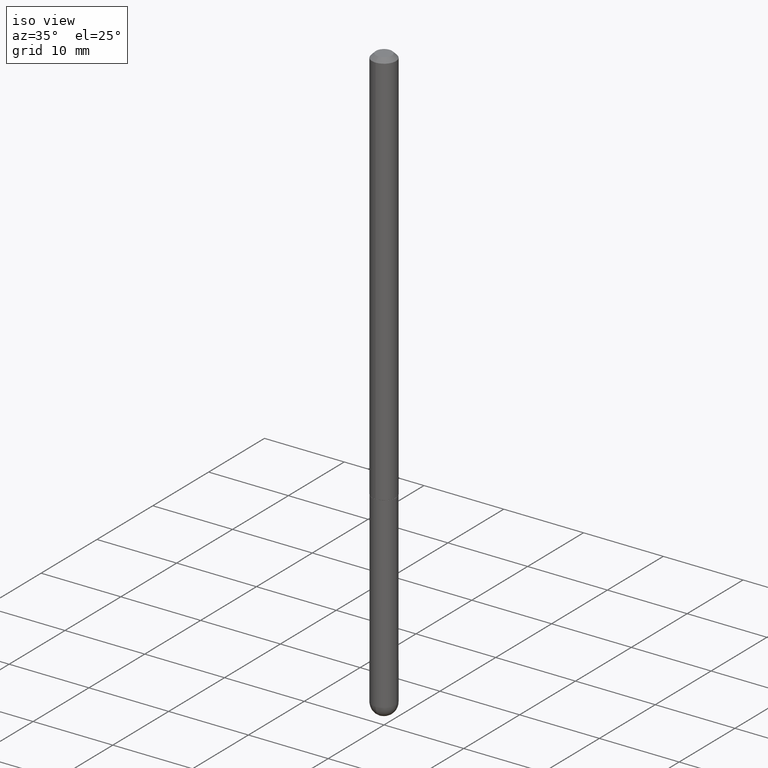
[diagram: clean part render]
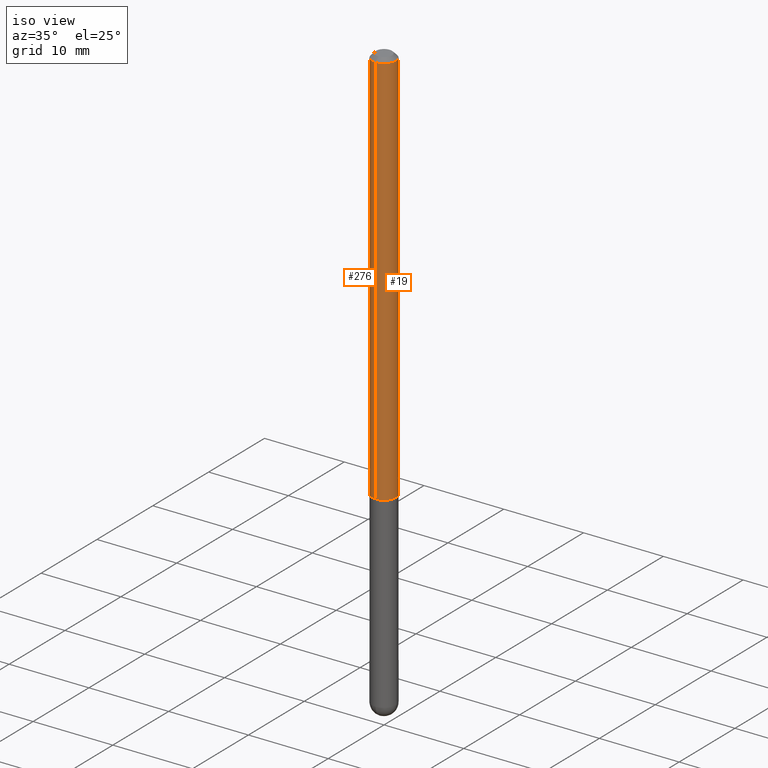
[diagram: same view with one multi-face feature highlighted, each face labeled with its STEP entity id]
A machine part, iso view. The highlighted faces form ONE feature: a constant-radius fillet chain: 2 tangent blend faces with common blend radius 1.4999 mm. The faces share edges in the B-rep.
Their STEP definitions:
[1] entity #276 (Cylinder):
#9 = ORIENTED_EDGE ( 'NONE', *, *, #59, .T. ) ;
#15 = DIRECTION ( 'NONE',  ( -2.452606242276133797E-29, 3.481260124123203654E-15, 1.000000000000000000 ) ) ;
#16 = VERTEX_POINT ( 'NONE', #122 ) ;
#34 = DIRECTION ( 'NONE',  ( -2.452606242276134078E-29, 3.481260124123204048E-15, 1.000000000000000000 ) ) ;
#38 = AXIS2_PLACEMENT_3D ( 'NONE', #259, #99, #134 ) ;
#44 = ORIENTED_EDGE ( 'NONE', *, *, #386, .F. ) ;
#54 = CIRCLE ( 'NONE', #306, 0.05905000000000001914 ) ;
#56 = VERTEX_POINT ( 'NONE', #125 ) ;
#59 = EDGE_CURVE ( 'NONE', #16, #81, #375, .T. ) ;
#70 = CIRCLE ( 'NONE', #363, 0.05905000000000020649 ) ;
#81 = VERTEX_POINT ( 'NONE', #368 ) ;
#85 = DIRECTION ( 'NONE',  ( -6.982962677686265922E-15, -1.000000000000000000, 3.469747663417776213E-15 ) ) ;
#99 = DIRECTION ( 'NONE',  ( -2.452606242276133797E-29, 3.481260124123203654E-15, 1.000000000000000000 ) ) ;
#102 = VECTOR ( 'NONE', #252, 39.37007874015748143 ) ;
#122 = CARTESIAN_POINT ( 'NONE',  ( -4.123439461173271448E-16, -0.05905000000000704824, -1.967499999999999361 ) ) ;
#125 = CARTESIAN_POINT ( 'NONE',  ( 4.123439461173745750E-16, 0.05904999999999994975, -0.02000000000000027450 ) ) ;
#134 = DIRECTION ( 'NONE',  ( -6.982962677686265922E-15, -1.000000000000000000, 3.481260124123203654E-15 ) ) ;
#196 = CYLINDRICAL_SURFACE ( 'NONE', #38, 0.05905000000000010935 ) ;
#204 = DIRECTION ( 'NONE',  ( -2.452606242276133797E-29, 3.481260124123203654E-15, 1.000000000000000000 ) ) ;
#214 = LINE ( 'NONE', #404, #102 ) ;
#228 = DIRECTION ( 'NONE',  ( -6.982962677686265922E-15, -1.000000000000000000, 4.626330217890353559E-15 ) ) ;
#231 = CARTESIAN_POINT ( 'NONE',  ( 4.195754854663646379E-16, 0.05904999999999335780, -1.967500000000000027 ) ) ;
#232 = EDGE_CURVE ( 'NONE', #262, #16, #70, .T. ) ;
#239 = ORIENTED_EDGE ( 'NONE', *, *, #412, .F. ) ;
#252 = DIRECTION ( 'NONE',  ( -2.452606242276134078E-29, 3.481260124123204048E-15, 1.000000000000000000 ) ) ;
#259 = CARTESIAN_POINT ( 'NONE',  ( 0.000000000000000000, 0.000000000000000000, 0.000000000000000000 ) ) ;
#262 = VERTEX_POINT ( 'NONE', #231 ) ;
#264 = FACE_OUTER_BOUND ( 'NONE', #295, .T. ) ;
#276 = ADVANCED_FACE ( 'NONE', ( #264 ), #196, .T. ) ;
#295 = EDGE_LOOP ( 'NONE', ( #239, #374, #9, #44 ) ) ;
#297 = CARTESIAN_POINT ( 'NONE',  ( 4.825502781678292621E-29, -6.849379294212400691E-15, -1.967499999999999805 ) ) ;
#306 = AXIS2_PLACEMENT_3D ( 'NONE', #365, #15, #85 ) ;
#313 = VECTOR ( 'NONE', #34, 39.37007874015748143 ) ;
#363 = AXIS2_PLACEMENT_3D ( 'NONE', #297, #204, #228 ) ;
#365 = CARTESIAN_POINT ( 'NONE',  ( 4.905212484552284025E-31, -6.962520248246431022E-17, -0.02000000000000006981 ) ) ;
#368 = CARTESIAN_POINT ( 'NONE',  ( -4.051124067684085231E-16, -0.05905000000000008159, -0.01999999999999986511 ) ) ;
#374 = ORIENTED_EDGE ( 'NONE', *, *, #232, .T. ) ;
#375 = LINE ( 'NONE', #407, #313 ) ;
#386 = EDGE_CURVE ( 'NONE', #56, #81, #54, .T. ) ;
#404 = CARTESIAN_POINT ( 'NONE',  ( 4.195754854663398874E-16, 0.05905000000000010935, -2.055684103294755676E-16 ) ) ;
#407 = CARTESIAN_POINT ( 'NONE',  ( -4.123439461173747722E-16, -0.05905000000000010935, 2.055684103294755676E-16 ) ) ;
#412 = EDGE_CURVE ( 'NONE', #262, #56, #214, .T. ) ;
[2] entity #19 (Cylinder):
#16 = VERTEX_POINT ( 'NONE', #122 ) ;
#19 = ADVANCED_FACE ( 'NONE', ( #253 ), #377, .T. ) ;
#34 = DIRECTION ( 'NONE',  ( -2.452606242276134078E-29, 3.481260124123204048E-15, 1.000000000000000000 ) ) ;
#50 = ORIENTED_EDGE ( 'NONE', *, *, #341, .T. ) ;
#55 = CARTESIAN_POINT ( 'NONE',  ( 4.905212484552284025E-31, -6.962520248246431022E-17, -0.02000000000000006981 ) ) ;
#56 = VERTEX_POINT ( 'NONE', #125 ) ;
#59 = EDGE_CURVE ( 'NONE', #16, #81, #375, .T. ) ;
#60 = ORIENTED_EDGE ( 'NONE', *, *, #155, .F. ) ;
#81 = VERTEX_POINT ( 'NONE', #368 ) ;
#97 = CARTESIAN_POINT ( 'NONE',  ( 4.825502781678292621E-29, -6.849379294212400691E-15, -1.967499999999999805 ) ) ;
#102 = VECTOR ( 'NONE', #252, 39.37007874015748143 ) ;
#122 = CARTESIAN_POINT ( 'NONE',  ( -4.123439461173271448E-16, -0.05905000000000704824, -1.967499999999999361 ) ) ;
#125 = CARTESIAN_POINT ( 'NONE',  ( 4.123439461173745750E-16, 0.05904999999999994975, -0.02000000000000027450 ) ) ;
#126 = DIRECTION ( 'NONE',  ( -6.982962677686265922E-15, -1.000000000000000000, 3.481260124123203654E-15 ) ) ;
#140 = AXIS2_PLACEMENT_3D ( 'NONE', #55, #308, #279 ) ;
#155 = EDGE_CURVE ( 'NONE', #81, #56, #168, .T. ) ;
#157 = DIRECTION ( 'NONE',  ( -2.452606242276133797E-29, 3.481260124123203654E-15, 1.000000000000000000 ) ) ;
#168 = CIRCLE ( 'NONE', #140, 0.05905000000000001914 ) ;
#190 = EDGE_LOOP ( 'NONE', ( #50, #278, #60, #330 ) ) ;
#191 = CARTESIAN_POINT ( 'NONE',  ( 0.000000000000000000, 0.000000000000000000, 0.000000000000000000 ) ) ;
#214 = LINE ( 'NONE', #404, #102 ) ;
#230 = DIRECTION ( 'NONE',  ( -6.982962677686265922E-15, -1.000000000000000000, 4.626330217890353559E-15 ) ) ;
#231 = CARTESIAN_POINT ( 'NONE',  ( 4.195754854663646379E-16, 0.05904999999999335780, -1.967500000000000027 ) ) ;
#252 = DIRECTION ( 'NONE',  ( -2.452606242276134078E-29, 3.481260124123204048E-15, 1.000000000000000000 ) ) ;
#253 = FACE_OUTER_BOUND ( 'NONE', #190, .T. ) ;
#261 = CIRCLE ( 'NONE', #411, 0.05905000000000020649 ) ;
#262 = VERTEX_POINT ( 'NONE', #231 ) ;
#278 = ORIENTED_EDGE ( 'NONE', *, *, #412, .T. ) ;
#279 = DIRECTION ( 'NONE',  ( -6.982962677686265922E-15, -1.000000000000000000, 3.469747663417776213E-15 ) ) ;
#308 = DIRECTION ( 'NONE',  ( -2.452606242276133797E-29, 3.481260124123203654E-15, 1.000000000000000000 ) ) ;
#313 = VECTOR ( 'NONE', #34, 39.37007874015748143 ) ;
#330 = ORIENTED_EDGE ( 'NONE', *, *, #59, .F. ) ;
#341 = EDGE_CURVE ( 'NONE', #16, #262, #261, .T. ) ;
#356 = AXIS2_PLACEMENT_3D ( 'NONE', #191, #157, #126 ) ;
#368 = CARTESIAN_POINT ( 'NONE',  ( -4.051124067684085231E-16, -0.05905000000000008159, -0.01999999999999986511 ) ) ;
#375 = LINE ( 'NONE', #407, #313 ) ;
#377 = CYLINDRICAL_SURFACE ( 'NONE', #356, 0.05905000000000010935 ) ;
#379 = DIRECTION ( 'NONE',  ( -2.452606242276133797E-29, 3.481260124123203654E-15, 1.000000000000000000 ) ) ;
#404 = CARTESIAN_POINT ( 'NONE',  ( 4.195754854663398874E-16, 0.05905000000000010935, -2.055684103294755676E-16 ) ) ;
#407 = CARTESIAN_POINT ( 'NONE',  ( -4.123439461173747722E-16, -0.05905000000000010935, 2.055684103294755676E-16 ) ) ;
#411 = AXIS2_PLACEMENT_3D ( 'NONE', #97, #379, #230 ) ;
#412 = EDGE_CURVE ( 'NONE', #262, #56, #214, .T. ) ;